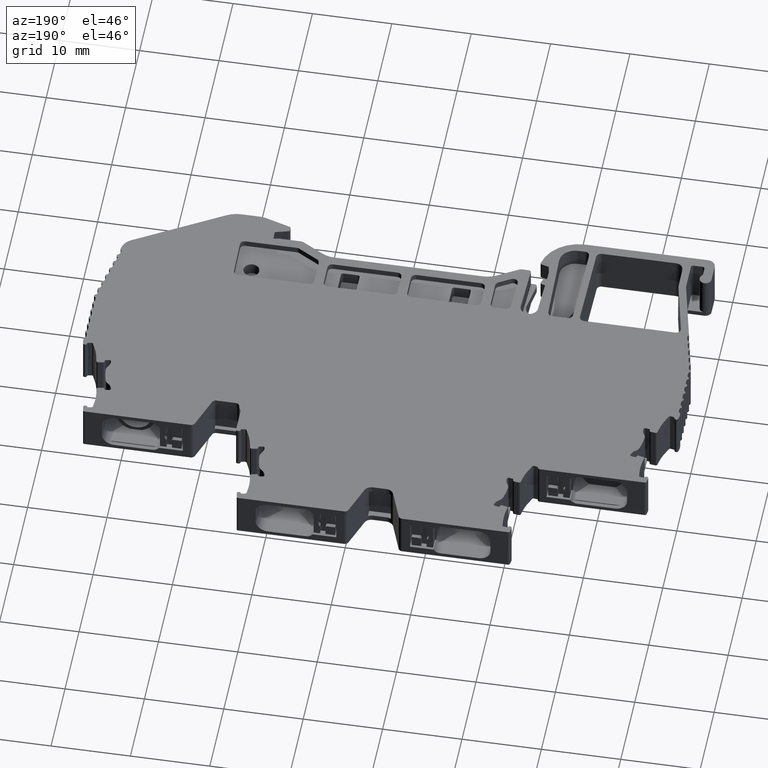
[diagram: clean part render]
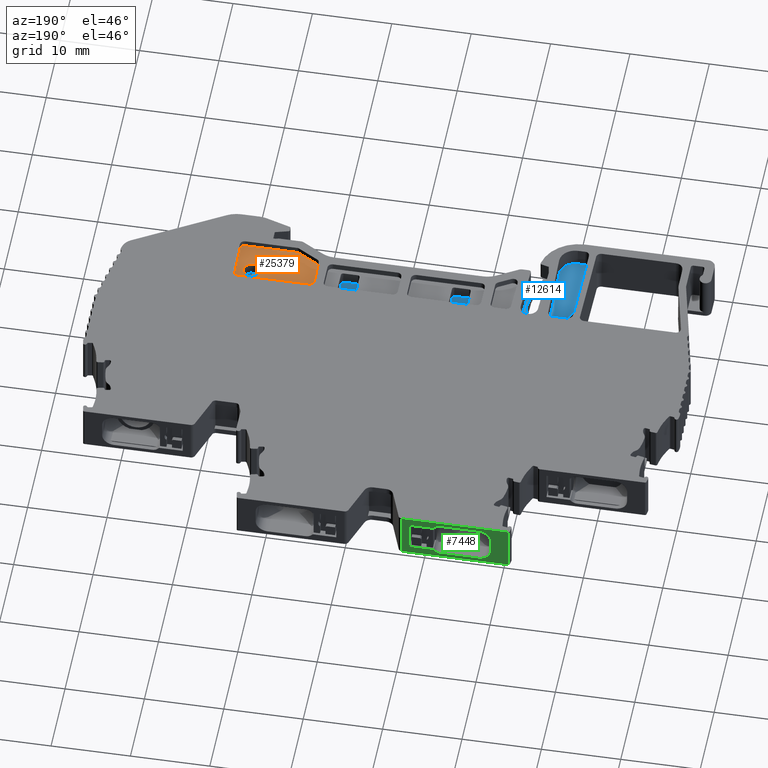
[diagram: same view with three faces highlighted in distinct colors, each labeled with its STEP entity id]
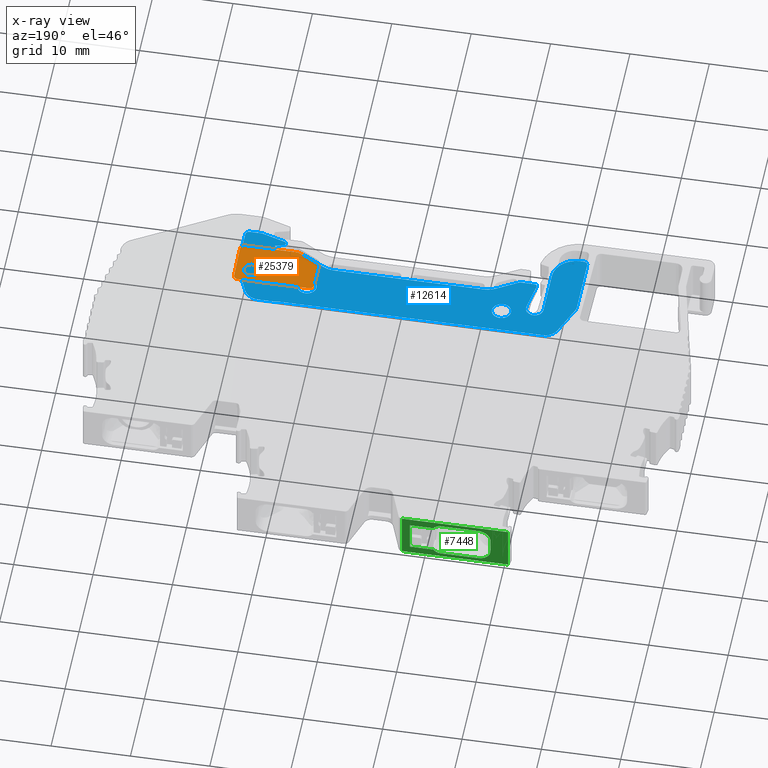
[diagram: x-ray of the same camera — body ghosted, the three highlighted faces saturated]
A machine part, auxiliary view with three faces highlighted in distinct colors.
The next image is the same camera in x-ray (body ghosted, the three faces saturated) — at least one of them is partly hidden behind the body in this view.
Their STEP definitions:

[orange] entity #25379 — the highlighted planar face has unit normal (0, 0, -1).
#13 = DIRECTION ( 'NONE',  ( -1.000000000000000000, 0.000000000000000000, 0.000000000000000000 ) ) ;
#65 = EDGE_CURVE ( 'NONE', #18562, #26511, #28390, .T. ) ;
#282 = EDGE_CURVE ( 'NONE', #22526, #18025, #29056, .T. ) ;
#1038 = PLANE ( 'NONE',  #27000 ) ;
#1328 = VERTEX_POINT ( 'NONE', #13498 ) ;
#1396 = ORIENTED_EDGE ( 'NONE', *, *, #8502, .F. ) ;
#2005 = CARTESIAN_POINT ( 'NONE',  ( 1943.553721869447145, 476.9486767584691620, 2.124999999999997335 ) ) ;
#2495 = VECTOR ( 'NONE', #17239, 1000.000000000000000 ) ;
#2822 = CIRCLE ( 'NONE', #4803, 0.9999999999998898659 ) ;
#3264 = CIRCLE ( 'NONE', #20596, 0.5860359480573951174 ) ;
#3298 = LINE ( 'NONE', #8405, #9348 ) ;
#3801 = DIRECTION ( 'NONE',  ( -0.000000000000000000, -0.000000000000000000, 1.000000000000000000 ) ) ;
#3806 = VECTOR ( 'NONE', #28680, 999.9999999999998863 ) ;
#3943 = EDGE_CURVE ( 'NONE', #1328, #18562, #28988, .T. ) ;
#4174 = CARTESIAN_POINT ( 'NONE',  ( 1948.692966163740039, 480.9598604050940480, 2.125000000000000000 ) ) ;
#4347 = CARTESIAN_POINT ( 'NONE',  ( 1943.395553184819846, 477.0138422423570432, 2.125000000000000000 ) ) ;
#4514 = CIRCLE ( 'NONE', #23830, 0.5860359480569510282 ) ;
#4803 = AXIS2_PLACEMENT_3D ( 'NONE', #9635, #16744, #26197 ) ;
#5305 = ORIENTED_EDGE ( 'NONE', *, *, #21721, .T. ) ;
#6006 = FACE_OUTER_BOUND ( 'NONE', #8948, .T. ) ;
#6138 = DIRECTION ( 'NONE',  ( -1.000000000000000000, 0.000000000000000000, 0.000000000000000000 ) ) ;
#6224 = DIRECTION ( 'NONE',  ( -1.000000000000000000, 0.000000000000000000, 0.000000000000000000 ) ) ;
#6385 = CARTESIAN_POINT ( 'NONE',  ( 1950.651415289569968, 482.2283759669219876, 2.125000000000000000 ) ) ;
#6444 = CARTESIAN_POINT ( 'NONE',  ( 1950.147218268769848, 476.9486767583030087, 2.125000000000000000 ) ) ;
#6586 = ORIENTED_EDGE ( 'NONE', *, *, #23460, .T. ) ;
#6708 = VECTOR ( 'NONE', #27258, 1000.000000000000000 ) ;
#7732 = AXIS2_PLACEMENT_3D ( 'NONE', #4174, #15640, #13618 ) ;
#8241 = DIRECTION ( 'NONE',  ( -0.000000000000000000, -0.000000000000000000, 1.000000000000000000 ) ) ;
#8325 = CIRCLE ( 'NONE', #29598, 0.5860359480576171620 ) ;
#8356 = LINE ( 'NONE', #17792, #6708 ) ;
#8405 = CARTESIAN_POINT ( 'NONE',  ( 1950.065468597629888, 482.8041841774270324, 2.125000000000000000 ) ) ;
#8502 = EDGE_CURVE ( 'NONE', #16421, #16910, #15148, .T. ) ;
#8574 = ORIENTED_EDGE ( 'NONE', *, *, #26404, .F. ) ;
#8790 = DIRECTION ( 'NONE',  ( 0.8660238551009388219, -0.5000026823889128780, 0.000000000000000000 ) ) ;
#8948 = EDGE_LOOP ( 'NONE', ( #11546, #30602, #6586, #12547, #19191, #18090, #5305, #14270, #11208, #23154, #11569 ) ) ;
#9348 = VECTOR ( 'NONE', #13, 1000.000000000000000 ) ;
#9591 = EDGE_CURVE ( 'NONE', #22662, #14632, #9983, .T. ) ;
#9635 = CARTESIAN_POINT ( 'NONE',  ( 1948.692966163740039, 480.9598604050940480, 2.125000000000000000 ) ) ;
#9983 = LINE ( 'NONE', #28875, #2495 ) ;
#10556 = CARTESIAN_POINT ( 'NONE',  ( 1950.065468597629888, 482.8041841774270324, 2.125000000000000000 ) ) ;
#10818 = CARTESIAN_POINT ( 'NONE',  ( 1950.065468597629888, 482.2181482293690351, 2.125000000000000000 ) ) ;
#10962 = CARTESIAN_POINT ( 'NONE',  ( 1950.147218268769848, 477.5347127063599828, 2.125000000000000000 ) ) ;
#11208 = ORIENTED_EDGE ( 'NONE', *, *, #3943, .T. ) ;
#11546 = ORIENTED_EDGE ( 'NONE', *, *, #25831, .T. ) ;
#11569 = ORIENTED_EDGE ( 'NONE', *, *, #20503, .T. ) ;
#11643 = AXIS2_PLACEMENT_3D ( 'NONE', #10962, #17766, #15750 ) ;
#12547 = ORIENTED_EDGE ( 'NONE', *, *, #20193, .T. ) ;
#13283 = EDGE_LOOP ( 'NONE', ( #1396, #8574 ) ) ;
#13498 = CARTESIAN_POINT ( 'NONE',  ( 1950.733164960715158, 477.5449404439119689, 2.125000000000000000 ) ) ;
#13618 = DIRECTION ( 'NONE',  ( 1.000000000000000000, 0.000000000000000000, 0.000000000000000000 ) ) ;
#13905 = CARTESIAN_POINT ( 'NONE',  ( 1940.567030350399818, 482.2181482293690351, 2.125000000000000000 ) ) ;
#14100 = CARTESIAN_POINT ( 'NONE',  ( 1943.469191804901811, 476.9713266613268843, 2.124999999999997335 ) ) ;
#14225 = CARTESIAN_POINT ( 'NONE',  ( 1949.692966163739811, 480.9598604050940480, 2.125000000000000000 ) ) ;
#14270 = ORIENTED_EDGE ( 'NONE', *, *, #15280, .T. ) ;
#14632 = VERTEX_POINT ( 'NONE', #16584 ) ;
#14745 = CARTESIAN_POINT ( 'NONE',  ( 1950.065468597629888, 482.2181482293690351, 2.125000000000000000 ) ) ;
#15148 = CIRCLE ( 'NONE', #7732, 0.9999999999998898659 ) ;
#15280 = EDGE_CURVE ( 'NONE', #27706, #1328, #26949, .T. ) ;
#15640 = DIRECTION ( 'NONE',  ( 0.000000000000000000, 0.000000000000000000, 1.000000000000000000 ) ) ;
#15750 = DIRECTION ( 'NONE',  ( -1.000000000000000000, -5.872833207152694126E-12, 0.000000000000000000 ) ) ;
#16175 = DIRECTION ( 'NONE',  ( -0.000000000000000000, -0.000000000000000000, 1.000000000000000000 ) ) ;
#16421 = VERTEX_POINT ( 'NONE', #14225 ) ;
#16584 = CARTESIAN_POINT ( 'NONE',  ( 1940.567030350399818, 478.9852491457630208, 2.125000000000000000 ) ) ;
#16744 = DIRECTION ( 'NONE',  ( 0.000000000000000000, 0.000000000000000000, 1.000000000000000000 ) ) ;
#16910 = VERTEX_POINT ( 'NONE', #19753 ) ;
#17239 = DIRECTION ( 'NONE',  ( 0.000000000000000000, -1.000000000000000000, 0.000000000000000000 ) ) ;
#17307 = EDGE_CURVE ( 'NONE', #18025, #28135, #8356, .T. ) ;
#17766 = DIRECTION ( 'NONE',  ( -0.000000000000000000, -0.000000000000000000, 1.000000000000000000 ) ) ;
#17767 = FACE_BOUND ( 'NONE', #13283, .T. ) ;
#17792 = CARTESIAN_POINT ( 'NONE',  ( 1943.638752575655190, 476.9486767583030087, 2.125000000000000000 ) ) ;
#18025 = VERTEX_POINT ( 'NONE', #29352 ) ;
#18090 = ORIENTED_EDGE ( 'NONE', *, *, #17307, .T. ) ;
#18480 = AXIS2_PLACEMENT_3D ( 'NONE', #14745, #24206, #22797 ) ;
#18503 = DIRECTION ( 'NONE',  ( -1.000000000000000000, 0.000000000000000000, 0.000000000000000000 ) ) ;
#18562 = VERTEX_POINT ( 'NONE', #6385 ) ;
#19191 = ORIENTED_EDGE ( 'NONE', *, *, #282, .T. ) ;
#19241 = CARTESIAN_POINT ( 'NONE',  ( 1950.733164960715158, 477.5449404439119689, 2.125000000000000000 ) ) ;
#19753 = CARTESIAN_POINT ( 'NONE',  ( 1947.692966163740039, 480.9598604050940480, 2.125000000000000000 ) ) ;
#20177 = CARTESIAN_POINT ( 'NONE',  ( 1941.153066298455087, 478.9852491457630208, 2.125000000000000000 ) ) ;
#20193 = EDGE_CURVE ( 'NONE', #27400, #22526, #20883, .T. ) ;
#20503 = EDGE_CURVE ( 'NONE', #26511, #28446, #3298, .T. ) ;
#20596 = AXIS2_PLACEMENT_3D ( 'NONE', #30276, #16175, #18503 ) ;
#20883 = LINE ( 'NONE', #30005, #25159 ) ;
#21089 = CARTESIAN_POINT ( 'NONE',  ( 1943.638752575655190, 476.9486767583030087, 2.125000000000000000 ) ) ;
#21090 = CARTESIAN_POINT ( 'NONE',  ( 1940.860046752450216, 478.4777280347989858, 2.125000000000000000 ) ) ;
#21721 = EDGE_CURVE ( 'NONE', #28135, #27706, #8325, .T. ) ;
#21992 = DIRECTION ( 'NONE',  ( 0.000000000000000000, 0.000000000000000000, -1.000000000000000000 ) ) ;
#22526 = VERTEX_POINT ( 'NONE', #29253 ) ;
#22662 = VERTEX_POINT ( 'NONE', #13905 ) ;
#22797 = DIRECTION ( 'NONE',  ( -1.000000000000000000, -9.472311624439829072E-14, 0.000000000000000000 ) ) ;
#23154 = ORIENTED_EDGE ( 'NONE', *, *, #65, .T. ) ;
#23460 = EDGE_CURVE ( 'NONE', #14632, #27400, #4514, .T. ) ;
#23830 = AXIS2_PLACEMENT_3D ( 'NONE', #20177, #8241, #6224 ) ;
#24206 = DIRECTION ( 'NONE',  ( -0.000000000000000000, -0.000000000000000000, 1.000000000000000000 ) ) ;
#24402 = CARTESIAN_POINT ( 'NONE',  ( 1941.153066298455087, 482.8041841774270324, 2.125000000000000000 ) ) ;
#25159 = VECTOR ( 'NONE', #8790, 1000.000000000000000 ) ;
#25186 = CARTESIAN_POINT ( 'NONE',  ( 1950.147218268769848, 477.5347127063599828, 2.125000000000000000 ) ) ;
#25379 = ADVANCED_FACE ( 'NONE', ( #17767, #6006 ), #1038, .F. ) ;
#25831 = EDGE_CURVE ( 'NONE', #28446, #22662, #3264, .T. ) ;
#26197 = DIRECTION ( 'NONE',  ( 1.000000000000000000, 0.000000000000000000, 0.000000000000000000 ) ) ;
#26404 = EDGE_CURVE ( 'NONE', #16910, #16421, #2822, .T. ) ;
#26511 = VERTEX_POINT ( 'NONE', #10556 ) ;
#26949 = CIRCLE ( 'NONE', #11643, 0.5860359480576171620 ) ;
#27000 = AXIS2_PLACEMENT_3D ( 'NONE', #10818, #21992, #27380 ) ;
#27258 = DIRECTION ( 'NONE',  ( 1.000000000000000000, -1.705813746240605376E-14, 0.000000000000000000 ) ) ;
#27380 = DIRECTION ( 'NONE',  ( -1.000000000000000000, 0.000000000000000000, 0.000000000000000000 ) ) ;
#27400 = VERTEX_POINT ( 'NONE', #21090 ) ;
#27706 = VERTEX_POINT ( 'NONE', #30017 ) ;
#28135 = VERTEX_POINT ( 'NONE', #6444 ) ;
#28390 = CIRCLE ( 'NONE', #18480, 0.5860359480576171620 ) ;
#28446 = VERTEX_POINT ( 'NONE', #24402 ) ;
#28680 = DIRECTION ( 'NONE',  ( -0.01745240643745230719, 0.9998476951563883830, 0.000000000000000000 ) ) ;
#28875 = CARTESIAN_POINT ( 'NONE',  ( 1940.567030350399818, 482.2181482293690351, 2.125000000000000000 ) ) ;
#28988 = LINE ( 'NONE', #19241, #3806 ) ;
#29056 = B_SPLINE_CURVE_WITH_KNOTS ( 'NONE', 3,
 ( #4347, #14100, #2005, #21089 ),
 .UNSPECIFIED., .F., .F.,
 ( 4, 4 ),
 ( 4.742874840267547117E-16, 0.0002548524267453149399 ),
 .UNSPECIFIED. ) ;
#29253 = CARTESIAN_POINT ( 'NONE',  ( 1943.395553184819846, 477.0138422423570432, 2.125000000000000000 ) ) ;
#29352 = CARTESIAN_POINT ( 'NONE',  ( 1943.638752575655190, 476.9486767583030087, 2.125000000000000000 ) ) ;
#29598 = AXIS2_PLACEMENT_3D ( 'NONE', #25186, #3801, #6138 ) ;
#30005 = CARTESIAN_POINT ( 'NONE',  ( 1940.860046752450216, 478.4777280348000090, 2.125000000000000000 ) ) ;
#30017 = CARTESIAN_POINT ( 'NONE',  ( 1950.733254216827390, 477.5347127063599828, 2.125000000000000000 ) ) ;
#30276 = CARTESIAN_POINT ( 'NONE',  ( 1941.153066298455087, 482.2181482293690351, 2.125000000000000000 ) ) ;
#30602 = ORIENTED_EDGE ( 'NONE', *, *, #9591, .T. ) ;

[blue] entity #12614 — the highlighted planar face has unit normal (-0, 0, -1).
#22 = VECTOR ( 'NONE', #20402, 1000.000000000000114 ) ;
#43 = VERTEX_POINT ( 'NONE', #12276 ) ;
#155 = CARTESIAN_POINT ( 'NONE',  ( 1941.692966163739811, 480.9598604050940480, 0.4750000000150049750 ) ) ;
#269 = CIRCLE ( 'NONE', #20082, 0.9999999999996678213 ) ;
#374 = FACE_BOUND ( 'NONE', #13563, .T. ) ;
#394 = CARTESIAN_POINT ( 'NONE',  ( 1917.192966163739811, 482.1598604050941503, 0.4750000000217930451 ) ) ;
#527 = CARTESIAN_POINT ( 'NONE',  ( 1948.848794024970175, 472.9233260166219566, 0.4749999999999999778 ) ) ;
#561 = EDGE_CURVE ( 'NONE', #17716, #19207, #11409, .T. ) ;
#594 = EDGE_CURVE ( 'NONE', #20830, #9858, #13441, .T. ) ;
#679 = ORIENTED_EDGE ( 'NONE', *, *, #12469, .F. ) ;
#765 = CARTESIAN_POINT ( 'NONE',  ( 1945.798630798404929, 474.1076573810410082, 0.4750000000035700110 ) ) ;
#848 = DIRECTION ( 'NONE',  ( -0.8660238551023851095, -0.5000026823864079928, -1.480741984239946048E-12 ) ) ;
#907 = DIRECTION ( 'NONE',  ( -1.776356821935509986E-15, 5.619248332499660241E-12, -1.000000000000000000 ) ) ;
#994 = LINE ( 'NONE', #10472, #10033 ) ;
#1351 = CIRCLE ( 'NONE', #25608, 0.2999999999999114486 ) ;
#1358 = DIRECTION ( 'NONE',  ( -1.776356830050185078E-15, 2.961114267037269966E-12, -1.000000000000000000 ) ) ;
#1379 = DIRECTION ( 'NONE',  ( 0.000000000000000000, 1.000000000000000000, 5.619239159630387384E-12 ) ) ;
#1470 = CIRCLE ( 'NONE', #28687, 1.099999999999767830 ) ;
#1569 = LINE ( 'NONE', #8254, #29560 ) ;
#1618 = VERTEX_POINT ( 'NONE', #27262 ) ;
#1744 = VERTEX_POINT ( 'NONE', #30035 ) ;
#1771 = EDGE_CURVE ( 'NONE', #14589, #30428, #12490, .T. ) ;
#1773 = VECTOR ( 'NONE', #23477, 1000.000000000000114 ) ;
#1887 = CARTESIAN_POINT ( 'NONE',  ( 1943.217251896170183, 475.6847127063820153, 0.4750000000082399976 ) ) ;
#1931 = EDGE_CURVE ( 'NONE', #25616, #14056, #2605, .T. ) ;
#1993 = EDGE_CURVE ( 'NONE', #8220, #15956, #994, .T. ) ;
#2252 = FACE_OUTER_BOUND ( 'NONE', #25491, .T. ) ;
#2484 = DIRECTION ( 'NONE',  ( -1.776356830050185078E-15, 2.961114267037269966E-12, -1.000000000000000000 ) ) ;
#2551 = LINE ( 'NONE', #25956, #16882 ) ;
#2564 = ORIENTED_EDGE ( 'NONE', *, *, #1993, .F. ) ;
#2587 = ORIENTED_EDGE ( 'NONE', *, *, #21925, .F. ) ;
#2605 = CIRCLE ( 'NONE', #22903, 1.199999999999978861 ) ;
#2702 = ORIENTED_EDGE ( 'NONE', *, *, #2731, .T. ) ;
#2731 = EDGE_CURVE ( 'NONE', #1744, #10839, #29144, .T. ) ;
#2789 = CARTESIAN_POINT ( 'NONE',  ( 1944.935921286549728, 505.8095947062454343, 0.4750000001546433870 ) ) ;
#2986 = ORIENTED_EDGE ( 'NONE', *, *, #21260, .F. ) ;
#3014 = LINE ( 'NONE', #527, #21132 ) ;
#3166 = VECTOR ( 'NONE', #11097, 1000.000000000000000 ) ;
#3253 = CARTESIAN_POINT ( 'NONE',  ( 1941.692966163739811, 480.9598604050940480, 0.4750000000150049750 ) ) ;
#3577 = CARTESIAN_POINT ( 'NONE',  ( 1938.841889403515097, 474.6693883772550180, 0.4750000000051500249 ) ) ;
#3586 = DIRECTION ( 'NONE',  ( -3.108624468950090558E-12, -1.000000000000000000, -2.961064553274829964E-12 ) ) ;
#3625 = CARTESIAN_POINT ( 'NONE',  ( 1945.548630798404929, 474.2094623273100638, 0.4750000000037949976 ) ) ;
#3653 = ORIENTED_EDGE ( 'NONE', *, *, #22206, .F. ) ;
#3663 = CARTESIAN_POINT ( 'NONE',  ( 1938.841889403525101, 477.6693883772559843, 0.4750000000140300327 ) ) ;
#3781 = EDGE_CURVE ( 'NONE', #24750, #13759, #29666, .T. ) ;
#3954 = ORIENTED_EDGE ( 'NONE', *, *, #24315, .F. ) ;
#4039 = AXIS2_PLACEMENT_3D ( 'NONE', #27834, #6614, #20868 ) ;
#4251 = ORIENTED_EDGE ( 'NONE', *, *, #23796, .F. ) ;
#4448 = VECTOR ( 'NONE', #15686, 1000.000000000000114 ) ;
#4583 = EDGE_CURVE ( 'NONE', #15473, #26910, #1351, .T. ) ;
#4733 = AXIS2_PLACEMENT_3D ( 'NONE', #13187, #22660, #3586 ) ;
#4855 = DIRECTION ( 'NONE',  ( -1.776356830050185078E-15, 2.961114267037269966E-12, -1.000000000000000000 ) ) ;
#4965 = CARTESIAN_POINT ( 'NONE',  ( 1949.792969024739932, 478.7750973310379550, 0.4750000000173250081 ) ) ;
#5039 = EDGE_CURVE ( 'NONE', #22858, #20830, #20662, .T. ) ;
#5099 = ORIENTED_EDGE ( 'NONE', *, *, #29633, .F. ) ;
#5179 = AXIS2_PLACEMENT_3D ( 'NONE', #765, #5285, #19833 ) ;
#5180 = CIRCLE ( 'NONE', #19517, 1.000000000000111910 ) ;
#5285 = DIRECTION ( 'NONE',  ( -1.776356830050185078E-15, 2.961114267037269966E-12, -1.000000000000000000 ) ) ;
#5382 = VERTEX_POINT ( 'NONE', #14366 ) ;
#5396 = CARTESIAN_POINT ( 'NONE',  ( 1909.092969024740114, 478.7751111454130069, 0.4750000000172450165 ) ) ;
#5607 = EDGE_CURVE ( 'NONE', #26910, #12970, #23497, .T. ) ;
#5738 = VERTEX_POINT ( 'NONE', #17101 ) ;
#5799 = ORIENTED_EDGE ( 'NONE', *, *, #20867, .F. ) ;
#5835 = CARTESIAN_POINT ( 'NONE',  ( 1945.691340746700007, 475.6847127063740004, 0.4750000000082350016 ) ) ;
#5845 = DIRECTION ( 'NONE',  ( -3.108624468950090558E-12, -1.000000000000000000, -2.961118763383454240E-12 ) ) ;
#5930 = ORIENTED_EDGE ( 'NONE', *, *, #8227, .F. ) ;
#5933 = ORIENTED_EDGE ( 'NONE', *, *, #23672, .T. ) ;
#6037 = CARTESIAN_POINT ( 'NONE',  ( 1912.092966163699884, 473.8847255810809997, 0.4750000000028000158 ) ) ;
#6057 = DIRECTION ( 'NONE',  ( -3.034609600640800324E-12, -1.000000000000000000, -2.961118763382522450E-12 ) ) ;
#6073 = CARTESIAN_POINT ( 'NONE',  ( 1913.633215408229944, 476.0368071597729909, 0.4750000000090149888 ) ) ;
#6188 = ORIENTED_EDGE ( 'NONE', *, *, #14668, .F. ) ;
#6451 = LINE ( 'NONE', #16048, #18005 ) ;
#6536 = CARTESIAN_POINT ( 'NONE',  ( 1912.092966163699884, 473.8847255810809997, 0.4750000000028000158 ) ) ;
#6614 = DIRECTION ( 'NONE',  ( -1.776356830050185078E-15, 2.961114267037269966E-12, -1.000000000000000000 ) ) ;
#6768 = CARTESIAN_POINT ( 'NONE',  ( 1913.928657734134958, 475.6847127064719984, 0.4750000000081250340 ) ) ;
#6880 = ORIENTED_EDGE ( 'NONE', *, *, #9704, .F. ) ;
#6900 = DIRECTION ( 'NONE',  ( -3.108624468950866848E-12, -1.000000000000000000, -2.961118763384193775E-12 ) ) ;
#6904 = EDGE_CURVE ( 'NONE', #9858, #13490, #30134, .T. ) ;
#7067 = EDGE_CURVE ( 'NONE', #20065, #14137, #3014, .T. ) ;
#7208 = DIRECTION ( 'NONE',  ( -1.776356830050185078E-15, 2.961114267037269966E-12, -1.000000000000000000 ) ) ;
#7297 = CARTESIAN_POINT ( 'NONE',  ( 1947.271087312830105, 482.2503324329130123, 0.4750000000273250089 ) ) ;
#7304 = AXIS2_PLACEMENT_3D ( 'NONE', #9037, #28092, #30557 ) ;
#7443 = ORIENTED_EDGE ( 'NONE', *, *, #27639, .T. ) ;
#7451 = CARTESIAN_POINT ( 'NONE',  ( 1918.544040598769925, 477.2674599426200075, 0.4750000000129949718 ) ) ;
#7510 = CARTESIAN_POINT ( 'NONE',  ( 1911.614845014619959, 482.2503324330230043, 0.4750000000274500200 ) ) ;
#7566 = VERTEX_POINT ( 'NONE', #6073 ) ;
#7586 = VECTOR ( 'NONE', #848, 999.9999999999998863 ) ;
#7669 = EDGE_CURVE ( 'NONE', #43, #5382, #1470, .T. ) ;
#7736 = EDGE_CURVE ( 'NONE', #12129, #8220, #21256, .T. ) ;
#7876 = CARTESIAN_POINT ( 'NONE',  ( 1908.512448016934968, 470.8171671095009856, 0.4749999999937100092 ) ) ;
#7918 = DIRECTION ( 'NONE',  ( 1.776356830050185078E-15, -2.961114267037269966E-12, 1.000000000000000000 ) ) ;
#8035 = DIRECTION ( 'NONE',  ( 3.713265354292279509E-12, 1.000000000000000000, 2.967515460675544983E-12 ) ) ;
#8220 = VERTEX_POINT ( 'NONE', #23014 ) ;
#8227 = EDGE_CURVE ( 'NONE', #17774, #12856, #20993, .T. ) ;
#8254 = CARTESIAN_POINT ( 'NONE',  ( 1945.724568208800065, 473.8688798008089975, 0.4750000000026850522 ) ) ;
#8277 = DIRECTION ( 'NONE',  ( -1.776356830050185078E-15, 2.961114267037269966E-12, -1.000000000000000000 ) ) ;
#8337 = LINE ( 'NONE', #17469, #28612 ) ;
#8377 = AXIS2_PLACEMENT_3D ( 'NONE', #22744, #25058, #10956 ) ;
#8409 = CARTESIAN_POINT ( 'NONE',  ( 1914.276257553055075, 479.6836803848889872, 0.4750000000198900119 ) ) ;
#8475 = AXIS2_PLACEMENT_3D ( 'NONE', #28248, #4855, #21136 ) ;
#8759 = VERTEX_POINT ( 'NONE', #7876 ) ;
#8922 = ORIENTED_EDGE ( 'NONE', *, *, #594, .F. ) ;
#9037 = CARTESIAN_POINT ( 'NONE',  ( 1920.044048645929934, 474.6693883773120319, 0.4750000000052150284 ) ) ;
#9089 = CIRCLE ( 'NONE', #19492, 3.083962780616844590 ) ;
#9211 = CARTESIAN_POINT ( 'NONE',  ( 1909.009095599049942, 473.8608766244519757, 0.4750000000025900171 ) ) ;
#9416 = EDGE_CURVE ( 'NONE', #13213, #20065, #17830, .T. ) ;
#9704 = EDGE_CURVE ( 'NONE', #14636, #21686, #1569, .T. ) ;
#9777 = DIRECTION ( 'NONE',  ( 0.000000000000000000, 1.000000000000000000, 5.619239159630387384E-12 ) ) ;
#9813 = CARTESIAN_POINT ( 'NONE',  ( 1945.841335990649895, 475.7249023393900416, 0.4750000000082350016 ) ) ;
#9858 = VERTEX_POINT ( 'NONE', #13976 ) ;
#9937 = CIRCLE ( 'NONE', #27236, 0.5000000000000559552 ) ;
#10001 = DIRECTION ( 'NONE',  ( -1.000000000000000000, 2.906425021968365003E-12, 3.491481338098295227E-15 ) ) ;
#10033 = VECTOR ( 'NONE', #29510, 1000.000000000000000 ) ;
#10063 = CARTESIAN_POINT ( 'NONE',  ( 1950.292969024719923, 472.9233260166179775, 0.4749999999999999778 ) ) ;
#10472 = CARTESIAN_POINT ( 'NONE',  ( 1947.271087312835107, 484.2503324329130123, 0.4750000000333200467 ) ) ;
#10628 = CARTESIAN_POINT ( 'NONE',  ( 1917.192966163739811, 480.9598604050940480, 0.4750000000150499946 ) ) ;
#10812 = CARTESIAN_POINT ( 'NONE',  ( 1915.668686153285080, 475.6847127064660299, 0.4750000000081200380 ) ) ;
#10839 = VERTEX_POINT ( 'NONE', #24093 ) ;
#10905 = ORIENTED_EDGE ( 'NONE', *, *, #1771, .F. ) ;
#10941 = CARTESIAN_POINT ( 'NONE',  ( 1946.492969024729973, 475.7547004417580183, 0.4750000000084549923 ) ) ;
#10956 = DIRECTION ( 'NONE',  ( -2.960594732336267994E-12, -1.000000000000000000, -2.961136833422511150E-12 ) ) ;
#11097 = DIRECTION ( 'NONE',  ( -0.8660345566149691976, -0.4999841464973801552, -1.480686941338548267E-12 ) ) ;
#11104 = VERTEX_POINT ( 'NONE', #30084 ) ;
#11252 = DIRECTION ( 'NONE',  ( -0.8660238550993066831, 0.5000026823917397278, 1.486789396497695300E-12 ) ) ;
#11401 = CARTESIAN_POINT ( 'NONE',  ( 1946.792969024725153, 474.7347255809740432, 0.4750000000053449800 ) ) ;
#11409 = LINE ( 'NONE', #6768, #20893 ) ;
#11863 = DIRECTION ( 'NONE',  ( -1.776356821935509986E-15, 5.619248332499656202E-12, -1.000000000000000000 ) ) ;
#12101 = VECTOR ( 'NONE', #27464, 1000.000000000000000 ) ;
#12129 = VERTEX_POINT ( 'NONE', #23537 ) ;
#12276 = CARTESIAN_POINT ( 'NONE',  ( 1914.276257553055075, 479.6836803848889872, 0.4750000000198900119 ) ) ;
#12318 = AXIS2_PLACEMENT_3D ( 'NONE', #3253, #20148, #1379 ) ;
#12469 = EDGE_CURVE ( 'NONE', #19207, #7566, #14449, .T. ) ;
#12490 = LINE ( 'NONE', #14388, #7586 ) ;
#12614 = ADVANCED_FACE ( 'NONE', ( #2252, #16795, #374 ), #26256, .F. ) ;
#12781 = CARTESIAN_POINT ( 'NONE',  ( 1909.009095599049942, 473.8608766244519757, 0.4750000000025900171 ) ) ;
#12801 = AXIS2_PLACEMENT_3D ( 'NONE', #17389, #28454, #25982 ) ;
#12856 = VERTEX_POINT ( 'NONE', #25161 ) ;
#12889 = AXIS2_PLACEMENT_3D ( 'NONE', #27242, #907, #25849 ) ;
#12947 = CARTESIAN_POINT ( 'NONE',  ( 1946.342973780780085, 476.0145108087420454, 0.4750000000091199603 ) ) ;
#12970 = VERTEX_POINT ( 'NONE', #9813 ) ;
#13021 = EDGE_CURVE ( 'NONE', #8759, #20958, #26785, .T. ) ;
#13106 = CARTESIAN_POINT ( 'NONE',  ( 1945.724568208800065, 473.8688798008089975, 0.4750000000026850522 ) ) ;
#13142 = CARTESIAN_POINT ( 'NONE',  ( 1915.668686153285080, 476.1847127064660299, 0.4750000000094500296 ) ) ;
#13174 = CARTESIAN_POINT ( 'NONE',  ( 1943.217251896170183, 475.6847127063820153, 0.4750000000082399976 ) ) ;
#13187 = CARTESIAN_POINT ( 'NONE',  ( 1948.848794024970175, 473.4233260166219566, 0.4750000000015600077 ) ) ;
#13213 = VERTEX_POINT ( 'NONE', #25127 ) ;
#13369 = ORIENTED_EDGE ( 'NONE', *, *, #23742, .F. ) ;
#13385 = DIRECTION ( 'NONE',  ( 0.000000000000000000, 1.000000000000000000, 5.619239159630387384E-12 ) ) ;
#13439 = CIRCLE ( 'NONE', #28796, 1.199999999999978861 ) ;
#13441 = CIRCLE ( 'NONE', #4039, 0.5000000000000559552 ) ;
#13490 = VERTEX_POINT ( 'NONE', #22017 ) ;
#13514 = ORIENTED_EDGE ( 'NONE', *, *, #16605, .F. ) ;
#13530 = LINE ( 'NONE', #23002, #18553 ) ;
#13563 = EDGE_LOOP ( 'NONE', ( #27405, #7443 ) ) ;
#13612 = CARTESIAN_POINT ( 'NONE',  ( 1950.792969024735157, 478.7750973310349423, 0.4750000000173200121 ) ) ;
#13625 = CARTESIAN_POINT ( 'NONE',  ( 1908.092969024714876, 471.3106408851829769, 0.4749999999952650431 ) ) ;
#13759 = VERTEX_POINT ( 'NONE', #19144 ) ;
#13819 = EDGE_CURVE ( 'NONE', #14473, #27248, #9089, .T. ) ;
#13932 = VECTOR ( 'NONE', #15327, 1000.000000000000114 ) ;
#13976 = CARTESIAN_POINT ( 'NONE',  ( 1942.967250554974953, 475.7517007788320029, 0.4750000000084650398 ) ) ;
#13984 = ORIENTED_EDGE ( 'NONE', *, *, #13021, .F. ) ;
#14005 = CARTESIAN_POINT ( 'NONE',  ( 1948.848794024970175, 472.9233260166219566, 0.4749999999999999778 ) ) ;
#14056 = VERTEX_POINT ( 'NONE', #27792 ) ;
#14137 = VERTEX_POINT ( 'NONE', #14005 ) ;
#14366 = CARTESIAN_POINT ( 'NONE',  ( 1912.092969024739887, 479.8746933803290062, 0.4750000000205649719 ) ) ;
#14388 = CARTESIAN_POINT ( 'NONE',  ( 1915.918687494480082, 475.7517007789149943, 0.4750000000083400287 ) ) ;
#14449 = CIRCLE ( 'NONE', #26333, 0.3000000000000779821 ) ;
#14473 = VERTEX_POINT ( 'NONE', #6536 ) ;
#14566 = DIRECTION ( 'NONE',  ( -3.027880976251065820E-12, -1.000000000000000000, -2.961103978809330952E-12 ) ) ;
#14589 = VERTEX_POINT ( 'NONE', #7451 ) ;
#14636 = VERTEX_POINT ( 'NONE', #26043 ) ;
#14668 = EDGE_CURVE ( 'NONE', #21686, #5738, #19017, .T. ) ;
#14780 = AXIS2_PLACEMENT_3D ( 'NONE', #3577, #7918, #6057 ) ;
#14839 = CIRCLE ( 'NONE', #17306, 1.999999999999724221 ) ;
#14849 = LINE ( 'NONE', #26931, #23734 ) ;
#14948 = ORIENTED_EDGE ( 'NONE', *, *, #28091, .F. ) ;
#15019 = ORIENTED_EDGE ( 'NONE', *, *, #6904, .F. ) ;
#15088 = DIRECTION ( 'NONE',  ( 5.241255640397440142E-12, 1.000000000000000000, 2.967515460675540136E-12 ) ) ;
#15327 = DIRECTION ( 'NONE',  ( -4.776389567471609391E-07, -0.9999999999998858691, -2.967515459007549818E-12 ) ) ;
#15396 = LINE ( 'NONE', #3625, #26844 ) ;
#15473 = VERTEX_POINT ( 'NONE', #19155 ) ;
#15487 = CARTESIAN_POINT ( 'NONE',  ( 1946.792969024725153, 474.7347255809740432, 0.4750000000053449800 ) ) ;
#15508 = CARTESIAN_POINT ( 'NONE',  ( 1909.009095599040393, 470.7769138438351320, 0.4749999999934580441 ) ) ;
#15656 = ORIENTED_EDGE ( 'NONE', *, *, #16586, .F. ) ;
#15679 = DIRECTION ( 'NONE',  ( -0.9551103209262932214, 0.2962503584134090207, 8.824622686755682398E-13 ) ) ;
#15686 = DIRECTION ( 'NONE',  ( 0.1736481776697454682, 0.9848077530117116396, 2.921825943485178775E-12 ) ) ;
#15710 = EDGE_CURVE ( 'NONE', #14137, #14636, #26004, .T. ) ;
#15841 = CIRCLE ( 'NONE', #12889, 1.199999999999978861 ) ;
#15893 = DIRECTION ( 'NONE',  ( -1.000000000000000000, 3.012927930994425004E-12, -8.320758577248530668E-15 ) ) ;
#15951 = EDGE_CURVE ( 'NONE', #12856, #23954, #269, .T. ) ;
#15956 = VERTEX_POINT ( 'NONE', #21711 ) ;
#16048 = CARTESIAN_POINT ( 'NONE',  ( 1920.044048645939938, 477.6693883773119751, 0.4750000000138750456 ) ) ;
#16191 = VECTOR ( 'NONE', #20388, 1000.000000000000114 ) ;
#16294 = CARTESIAN_POINT ( 'NONE',  ( 1909.767085949599959, 483.0156992977589994, 0.4750000000299000047 ) ) ;
#16575 = DIRECTION ( 'NONE',  ( -3.108624468951471077E-12, -1.000000000000000000, -2.961118763384768924E-12 ) ) ;
#16586 = EDGE_CURVE ( 'NONE', #1618, #24750, #5180, .T. ) ;
#16605 = EDGE_CURVE ( 'NONE', #29179, #11104, #6451, .T. ) ;
#16689 = CIRCLE ( 'NONE', #7304, 2.999999999999891642 ) ;
#16795 = FACE_BOUND ( 'NONE', #22044, .T. ) ;
#16882 = VECTOR ( 'NONE', #26567, 1000.000000000000000 ) ;
#17098 = EDGE_CURVE ( 'NONE', #23954, #13213, #13530, .T. ) ;
#17101 = CARTESIAN_POINT ( 'NONE',  ( 1945.548630798404929, 474.1076573810410082, 0.4750000000035700110 ) ) ;
#17188 = ORIENTED_EDGE ( 'NONE', *, *, #3781, .F. ) ;
#17296 = ORIENTED_EDGE ( 'NONE', *, *, #4583, .F. ) ;
#17306 = AXIS2_PLACEMENT_3D ( 'NONE', #7510, #26246, #6900 ) ;
#17389 = CARTESIAN_POINT ( 'NONE',  ( 1945.798630798404929, 474.2094623273090406, 0.4750000000037949976 ) ) ;
#17469 = CARTESIAN_POINT ( 'NONE',  ( 1896.978752798377400, 484.1626022916889838, 0.4750000000330878436 ) ) ;
#17480 = DIRECTION ( 'NONE',  ( -3.108624468950090558E-12, -1.000000000000000000, -2.961064553274829964E-12 ) ) ;
#17561 = VERTEX_POINT ( 'NONE', #21529 ) ;
#17716 = VERTEX_POINT ( 'NONE', #10812 ) ;
#17769 = CIRCLE ( 'NONE', #8377, 0.2999999999997449152 ) ;
#17774 = VERTEX_POINT ( 'NONE', #20715 ) ;
#17830 = CIRCLE ( 'NONE', #27239, 0.5000000000001114664 ) ;
#17876 = CARTESIAN_POINT ( 'NONE',  ( 1908.169089492224884, 479.1577945777810328, 0.4750000000183600135 ) ) ;
#17915 = CARTESIAN_POINT ( 'NONE',  ( 1915.918687494480082, 475.7517007789149943, 0.4750000000083400287 ) ) ;
#18005 = VECTOR ( 'NONE', #15893, 1000.000000000000000 ) ;
#18056 = CARTESIAN_POINT ( 'NONE',  ( 1913.928657734134958, 475.9847127064719530, 0.4750000000090099928 ) ) ;
#18127 = ORIENTED_EDGE ( 'NONE', *, *, #9416, .F. ) ;
#18371 = DIRECTION ( 'NONE',  ( -1.000000000000000000, 3.123981769497315067E-12, 3.491481338743900175E-15 ) ) ;
#18402 = EDGE_CURVE ( 'NONE', #27248, #8759, #25538, .T. ) ;
#18459 = ORIENTED_EDGE ( 'NONE', *, *, #20239, .F. ) ;
#18505 = DIRECTION ( 'NONE',  ( -3.108624468949745226E-12, -1.000000000000000000, -2.961064553274501192E-12 ) ) ;
#18553 = VECTOR ( 'NONE', #27791, 1000.000000000000000 ) ;
#18651 = DIRECTION ( 'NONE',  ( -1.776356830050185078E-15, 2.961114267037269966E-12, -1.000000000000000000 ) ) ;
#19017 = CIRCLE ( 'NONE', #5179, 0.2500000000003055334 ) ;
#19144 = CARTESIAN_POINT ( 'NONE',  ( 1909.767085949599959, 483.0156992977589994, 0.4750000000299000047 ) ) ;
#19155 = CARTESIAN_POINT ( 'NONE',  ( 1946.792969024730155, 475.7547004417569951, 0.4750000000084549923 ) ) ;
#19157 = CARTESIAN_POINT ( 'NONE',  ( 1913.928657734134958, 475.6847127064719984, 0.4750000000081250340 ) ) ;
#19207 = VERTEX_POINT ( 'NONE', #19157 ) ;
#19287 = ORIENTED_EDGE ( 'NONE', *, *, #13819, .F. ) ;
#19379 = ORIENTED_EDGE ( 'NONE', *, *, #15951, .F. ) ;
#19492 = AXIS2_PLACEMENT_3D ( 'NONE', #12781, #8277, #22403 ) ;
#19517 = AXIS2_PLACEMENT_3D ( 'NONE', #5396, #26619, #5845 ) ;
#19585 = ORIENTED_EDGE ( 'NONE', *, *, #7067, .F. ) ;
#19833 = DIRECTION ( 'NONE',  ( -2.664535259097119481E-12, -1.000000000000000000, -2.961172973488790795E-12 ) ) ;
#20065 = VERTEX_POINT ( 'NONE', #10063 ) ;
#20082 = AXIS2_PLACEMENT_3D ( 'NONE', #4965, #28355, #16575 ) ;
#20099 = ORIENTED_EDGE ( 'NONE', *, *, #21226, .F. ) ;
#20102 = AXIS2_PLACEMENT_3D ( 'NONE', #9211, #18651, #28114 ) ;
#20148 = DIRECTION ( 'NONE',  ( -1.776356821935509986E-15, 5.619248332499660241E-12, -1.000000000000000000 ) ) ;
#20222 = ORIENTED_EDGE ( 'NONE', *, *, #18402, .F. ) ;
#20239 = EDGE_CURVE ( 'NONE', #22867, #17561, #26150, .T. ) ;
#20388 = DIRECTION ( 'NONE',  ( 0.3826834323680105010, 0.9238795325100768174, 2.740290664466149557E-12 ) ) ;
#20402 = DIRECTION ( 'NONE',  ( 0.9659230709110930846, 0.2588293280941775798, 7.647075304279440991E-13 ) ) ;
#20662 = LINE ( 'NONE', #1887, #12101 ) ;
#20715 = CARTESIAN_POINT ( 'NONE',  ( 1949.118846377849877, 483.0156992976370702, 0.4750000000297600056 ) ) ;
#20830 = VERTEX_POINT ( 'NONE', #13174 ) ;
#20867 = EDGE_CURVE ( 'NONE', #13490, #29179, #28152, .T. ) ;
#20868 = DIRECTION ( 'NONE',  ( -3.108624468950090558E-12, -1.000000000000000000, -2.961064553274829964E-12 ) ) ;
#20893 = VECTOR ( 'NONE', #18371, 1000.000000000000000 ) ;
#20958 = VERTEX_POINT ( 'NONE', #13625 ) ;
#20993 = LINE ( 'NONE', #30270, #1773 ) ;
#21012 = DIRECTION ( 'NONE',  ( 1.776356830050185078E-15, -2.961114267037269966E-12, 1.000000000000000000 ) ) ;
#21132 = VECTOR ( 'NONE', #10001, 1000.000000000000000 ) ;
#21136 = DIRECTION ( 'NONE',  ( -3.108624469016009744E-12, -1.000000000000000000, -2.961064553337619758E-12 ) ) ;
#21173 = DIRECTION ( 'NONE',  ( -2.960594732332981082E-12, -1.000000000000000000, -2.961136833419223834E-12 ) ) ;
#21226 = EDGE_CURVE ( 'NONE', #24981, #15473, #14849, .T. ) ;
#21256 = LINE ( 'NONE', #2789, #29677 ) ;
#21260 = EDGE_CURVE ( 'NONE', #24544, #12129, #8337, .T. ) ;
#21529 = CARTESIAN_POINT ( 'NONE',  ( 1945.733923466380020, 474.4509430950370188, 0.4750000000044599657 ) ) ;
#21686 = VERTEX_POINT ( 'NONE', #13106 ) ;
#21711 = CARTESIAN_POINT ( 'NONE',  ( 1947.271087312835107, 484.2503324329130123, 0.4750000000333200467 ) ) ;
#21925 = EDGE_CURVE ( 'NONE', #13759, #24544, #14839, .T. ) ;
#21972 = CARTESIAN_POINT ( 'NONE',  ( 1945.548630798404929, 474.2094623273100638, 0.4750000000037949976 ) ) ;
#22017 = CARTESIAN_POINT ( 'NONE',  ( 1940.341897450689885, 477.2674599425529891, 0.4750000000129150357 ) ) ;
#22044 = EDGE_LOOP ( 'NONE', ( #5933, #2702 ) ) ;
#22206 = EDGE_CURVE ( 'NONE', #7566, #43, #25000, .T. ) ;
#22305 = DIRECTION ( 'NONE',  ( 1.000000000000000000, 0.000000000000000000, -1.776356821935509986E-15 ) ) ;
#22317 = ORIENTED_EDGE ( 'NONE', *, *, #27600, .F. ) ;
#22403 = DIRECTION ( 'NONE',  ( -3.095990026788391174E-12, -1.000000000000000000, -2.961113508145430954E-12 ) ) ;
#22406 = ORIENTED_EDGE ( 'NONE', *, *, #26968, .F. ) ;
#22660 = DIRECTION ( 'NONE',  ( -1.776356830050185078E-15, 2.961114267037269966E-12, -1.000000000000000000 ) ) ;
#22744 = CARTESIAN_POINT ( 'NONE',  ( 1945.691340746700007, 475.9847127063740118, 0.4750000000091199603 ) ) ;
#22858 = VERTEX_POINT ( 'NONE', #5835 ) ;
#22859 = CIRCLE ( 'NONE', #23344, 1.999999999999835243 ) ;
#22867 = VERTEX_POINT ( 'NONE', #21972 ) ;
#22903 = AXIS2_PLACEMENT_3D ( 'NONE', #10628, #29356, #13385 ) ;
#23002 = CARTESIAN_POINT ( 'NONE',  ( 1950.792969024720151, 473.4233260166159880, 0.4750000000015550117 ) ) ;
#23014 = CARTESIAN_POINT ( 'NONE',  ( 1944.935921286549728, 484.2503324329204588, 0.4750000000333281513 ) ) ;
#23135 = ORIENTED_EDGE ( 'NONE', *, *, #17098, .F. ) ;
#23139 = ORIENTED_EDGE ( 'NONE', *, *, #5039, .F. ) ;
#23344 = AXIS2_PLACEMENT_3D ( 'NONE', #7297, #2484, #24187 ) ;
#23477 = DIRECTION ( 'NONE',  ( 0.3826834323621278178, -0.9238795325125136459, -2.689788538315124249E-12 ) ) ;
#23482 = CARTESIAN_POINT ( 'NONE',  ( 1950.292969024719923, 473.4233260166179775, 0.4750000000015550117 ) ) ;
#23497 = LINE ( 'NONE', #25651, #3166 ) ;
#23537 = CARTESIAN_POINT ( 'NONE',  ( 1944.935921286549728, 484.1626022916889838, 0.4750000000330026895 ) ) ;
#23574 = ORIENTED_EDGE ( 'NONE', *, *, #7736, .F. ) ;
#23672 = EDGE_CURVE ( 'NONE', #10839, #1744, #13439, .T. ) ;
#23734 = VECTOR ( 'NONE', #8035, 1000.000000000000000 ) ;
#23742 = EDGE_CURVE ( 'NONE', #15956, #17774, #22859, .T. ) ;
#23796 = EDGE_CURVE ( 'NONE', #5382, #14473, #27257, .T. ) ;
#23954 = VERTEX_POINT ( 'NONE', #13612 ) ;
#24036 = DIRECTION ( 'NONE',  ( 0.000000000000000000, 1.000000000000000000, 5.619248332499661049E-12 ) ) ;
#24093 = CARTESIAN_POINT ( 'NONE',  ( 1941.692966163739811, 482.1598604050941503, 0.4750000000217505791 ) ) ;
#24187 = DIRECTION ( 'NONE',  ( -3.108624468950694384E-12, -1.000000000000000000, -2.961118763384029389E-12 ) ) ;
#24263 = CARTESIAN_POINT ( 'NONE',  ( 1911.028991801232451, 484.1626022916889838, 0.4750000000331134897 ) ) ;
#24315 = EDGE_CURVE ( 'NONE', #12970, #22858, #17769, .T. ) ;
#24544 = VERTEX_POINT ( 'NONE', #24263 ) ;
#24750 = VERTEX_POINT ( 'NONE', #17876 ) ;
#24981 = VERTEX_POINT ( 'NONE', #15487 ) ;
#25000 = LINE ( 'NONE', #8409, #4448 ) ;
#25058 = DIRECTION ( 'NONE',  ( -1.776356830050185078E-15, 2.961114267037269966E-12, -1.000000000000000000 ) ) ;
#25127 = CARTESIAN_POINT ( 'NONE',  ( 1950.792969024720151, 473.4233260166159880, 0.4750000000015550117 ) ) ;
#25161 = CARTESIAN_POINT ( 'NONE',  ( 1950.716848557249932, 479.1577807634000123, 0.4750000000184299576 ) ) ;
#25269 = ORIENTED_EDGE ( 'NONE', *, *, #28265, .F. ) ;
#25491 = EDGE_LOOP ( 'NONE', ( #23574, #2986, #2587, #17188, #15656, #25269, #13984, #20222, #19287, #4251, #26556, #3653, #679, #25695, #22317, #10905, #22406, #13514, #5799, #15019, #8922, #23139, #3954, #30105, #17296, #20099, #14948, #18459, #5099, #6188, #6880, #27431, #19585, #18127, #23135, #19379, #5930, #13369, #2564 ) ) ;
#25538 = CIRCLE ( 'NONE', #20102, 3.083962780616844590 ) ;
#25608 = AXIS2_PLACEMENT_3D ( 'NONE', #10941, #21012, #30124 ) ;
#25616 = VERTEX_POINT ( 'NONE', #394 ) ;
#25651 = CARTESIAN_POINT ( 'NONE',  ( 1945.841335990649895, 475.7249023393900416, 0.4750000000082350016 ) ) ;
#25695 = ORIENTED_EDGE ( 'NONE', *, *, #561, .F. ) ;
#25803 = LINE ( 'NONE', #11401, #22 ) ;
#25804 = DIRECTION ( 'NONE',  ( -3.060176890657050133E-12, -1.000000000000000000, -5.619248332499650547E-12 ) ) ;
#25849 = DIRECTION ( 'NONE',  ( 0.000000000000000000, 1.000000000000000000, 5.619239159630387384E-12 ) ) ;
#25956 = CARTESIAN_POINT ( 'NONE',  ( 1908.092969024735112, 478.7751111454159627, 0.4750000000172499570 ) ) ;
#25982 = DIRECTION ( 'NONE',  ( -2.664535259100077621E-12, -1.000000000000000000, -2.961172973492078515E-12 ) ) ;
#26004 = CIRCLE ( 'NONE', #4733, 0.5000000000000559552 ) ;
#26040 = DIRECTION ( 'NONE',  ( -1.776356821935509986E-15, 5.619248332499660241E-12, -1.000000000000000000 ) ) ;
#26043 = CARTESIAN_POINT ( 'NONE',  ( 1948.700668845764994, 472.9457708561589584, 0.4749999999999999778 ) ) ;
#26150 = CIRCLE ( 'NONE', #12801, 0.2500000000000279776 ) ;
#26246 = DIRECTION ( 'NONE',  ( -1.776356830050185078E-15, 2.961114267037269966E-12, -1.000000000000000000 ) ) ;
#26256 = PLANE ( 'NONE',  #28827 ) ;
#26333 = AXIS2_PLACEMENT_3D ( 'NONE', #18056, #7208, #21173 ) ;
#26348 = DIRECTION ( 'NONE',  ( 1.776356830050185078E-15, -2.961114267037269966E-12, 1.000000000000000000 ) ) ;
#26411 = CARTESIAN_POINT ( 'NONE',  ( 1936.942966163735036, 484.5003324329459815, 0.4750000000349099971 ) ) ;
#26556 = ORIENTED_EDGE ( 'NONE', *, *, #7669, .F. ) ;
#26567 = DIRECTION ( 'NONE',  ( 3.119670624889734695E-12, 1.000000000000000000, 2.937768593559204923E-12 ) ) ;
#26619 = DIRECTION ( 'NONE',  ( -1.776356830050185078E-15, 2.961114267037269966E-12, -1.000000000000000000 ) ) ;
#26785 = CIRCLE ( 'NONE', #8475, 0.4999999999894533254 ) ;
#26844 = VECTOR ( 'NONE', #15088, 1000.000000000000000 ) ;
#26910 = VERTEX_POINT ( 'NONE', #12947 ) ;
#26931 = CARTESIAN_POINT ( 'NONE',  ( 1946.792969024730155, 475.7547004417569951, 0.4750000000084549923 ) ) ;
#26968 = EDGE_CURVE ( 'NONE', #11104, #14589, #16689, .T. ) ;
#27067 = VECTOR ( 'NONE', #11252, 1000.000000000000227 ) ;
#27236 = AXIS2_PLACEMENT_3D ( 'NONE', #13142, #1358, #17480 ) ;
#27239 = AXIS2_PLACEMENT_3D ( 'NONE', #23482, #28267, #18505 ) ;
#27242 = CARTESIAN_POINT ( 'NONE',  ( 1917.192966163739811, 480.9598604050940480, 0.4750000000150499946 ) ) ;
#27248 = VERTEX_POINT ( 'NONE', #15508 ) ;
#27257 = LINE ( 'NONE', #6037, #13932 ) ;
#27262 = CARTESIAN_POINT ( 'NONE',  ( 1908.092969024735112, 478.7751111454159627, 0.4750000000172499570 ) ) ;
#27405 = ORIENTED_EDGE ( 'NONE', *, *, #1931, .T. ) ;
#27431 = ORIENTED_EDGE ( 'NONE', *, *, #15710, .F. ) ;
#27464 = DIRECTION ( 'NONE',  ( -1.000000000000000000, 3.015302874738534922E-12, 3.491481338421395299E-15 ) ) ;
#27600 = EDGE_CURVE ( 'NONE', #30428, #17716, #9937, .T. ) ;
#27639 = EDGE_CURVE ( 'NONE', #14056, #25616, #15841, .T. ) ;
#27791 = DIRECTION ( 'NONE',  ( -3.101666818361324906E-12, -1.000000000000000000, -2.967515460675544983E-12 ) ) ;
#27792 = CARTESIAN_POINT ( 'NONE',  ( 1917.192966163739811, 479.7598604050942299, 0.4750000000083068885 ) ) ;
#27834 = CARTESIAN_POINT ( 'NONE',  ( 1943.217251896170183, 476.1847127063820153, 0.4750000000095750408 ) ) ;
#28091 = EDGE_CURVE ( 'NONE', #17561, #24981, #25803, .T. ) ;
#28092 = DIRECTION ( 'NONE',  ( 1.776356830050185078E-15, -2.961114267037269966E-12, 1.000000000000000000 ) ) ;
#28114 = DIRECTION ( 'NONE',  ( -3.095990026788391174E-12, -1.000000000000000000, -2.961113508145430954E-12 ) ) ;
#28152 = CIRCLE ( 'NONE', #14780, 3.000000000001279421 ) ;
#28216 = CARTESIAN_POINT ( 'NONE',  ( 1913.192969024740023, 479.8746933803259935, 0.4750000000205599759 ) ) ;
#28248 = CARTESIAN_POINT ( 'NONE',  ( 1908.592969024705098, 471.3106408851940046, 0.4749999999952650431 ) ) ;
#28265 = EDGE_CURVE ( 'NONE', #20958, #1618, #2551, .T. ) ;
#28267 = DIRECTION ( 'NONE',  ( -1.776356830050185078E-15, 2.961114267037269966E-12, -1.000000000000000000 ) ) ;
#28284 = CARTESIAN_POINT ( 'NONE',  ( 1940.341897450689885, 477.2674599425529891, 0.4750000000129150357 ) ) ;
#28355 = DIRECTION ( 'NONE',  ( -1.776356830050185078E-15, 2.961114267037269966E-12, -1.000000000000000000 ) ) ;
#28454 = DIRECTION ( 'NONE',  ( -1.776356830050185078E-15, 2.961114267037269966E-12, -1.000000000000000000 ) ) ;
#28612 = VECTOR ( 'NONE', #22305, 1000.000000000000000 ) ;
#28687 = AXIS2_PLACEMENT_3D ( 'NONE', #28216, #26348, #14566 ) ;
#28796 = AXIS2_PLACEMENT_3D ( 'NONE', #155, #26040, #9777 ) ;
#28827 = AXIS2_PLACEMENT_3D ( 'NONE', #26411, #11863, #25804 ) ;
#29144 = CIRCLE ( 'NONE', #12318, 1.199999999999978861 ) ;
#29179 = VERTEX_POINT ( 'NONE', #3663 ) ;
#29356 = DIRECTION ( 'NONE',  ( -1.776356821935509986E-15, 5.619248332499660241E-12, -1.000000000000000000 ) ) ;
#29510 = DIRECTION ( 'NONE',  ( 1.000000000000000000, -3.215317392943340157E-12, -3.491481339014940161E-15 ) ) ;
#29560 = VECTOR ( 'NONE', #15679, 1000.000000000000000 ) ;
#29633 = EDGE_CURVE ( 'NONE', #5738, #22867, #15396, .T. ) ;
#29666 = LINE ( 'NONE', #16294, #16191 ) ;
#29677 = VECTOR ( 'NONE', #24036, 1000.000000000000000 ) ;
#30035 = CARTESIAN_POINT ( 'NONE',  ( 1941.692966163739811, 479.7598604050942299, 0.4750000000082643670 ) ) ;
#30084 = CARTESIAN_POINT ( 'NONE',  ( 1920.044048645939938, 477.6693883773119751, 0.4750000000138750456 ) ) ;
#30105 = ORIENTED_EDGE ( 'NONE', *, *, #5607, .F. ) ;
#30124 = DIRECTION ( 'NONE',  ( -2.960594732334624538E-12, -1.000000000000000000, -2.961136833420867694E-12 ) ) ;
#30134 = LINE ( 'NONE', #28284, #27067 ) ;
#30270 = CARTESIAN_POINT ( 'NONE',  ( 1950.716848557249932, 479.1577807634000123, 0.4750000000184299576 ) ) ;
#30428 = VERTEX_POINT ( 'NONE', #17915 ) ;
#30557 = DIRECTION ( 'NONE',  ( -3.034609600642204269E-12, -1.000000000000000000, -2.961118763383892468E-12 ) ) ;

[green] entity #7448 — the highlighted planar face has unit normal (0, -1, 0).
#132 = EDGE_CURVE ( 'NONE', #27810, #14823, #17665, .T. ) ;
#647 = FACE_OUTER_BOUND ( 'NONE', #4223, .T. ) ;
#734 = DIRECTION ( 'NONE',  ( 0.000000000000000000, 0.000000000000000000, 1.000000000000000000 ) ) ;
#912 = CARTESIAN_POINT ( 'NONE',  ( 1913.078921486465106, 520.6674757026430598, 2.399999999999999911 ) ) ;
#926 = CARTESIAN_POINT ( 'NONE',  ( 1918.653078310223236, 520.6674757026431735, -2.045112984519835475 ) ) ;
#966 = ORIENTED_EDGE ( 'NONE', *, *, #27291, .T. ) ;
#975 = LINE ( 'NONE', #24400, #29857 ) ;
#1167 = DIRECTION ( 'NONE',  ( -1.000000000000000000, 0.000000000000000000, -6.093957160985329962E-17 ) ) ;
#1581 = LINE ( 'NONE', #16307, #20475 ) ;
#1919 = ORIENTED_EDGE ( 'NONE', *, *, #5932, .T. ) ;
#2233 = VERTEX_POINT ( 'NONE', #2988 ) ;
#2988 = CARTESIAN_POINT ( 'NONE',  ( 1921.734104478385007, 520.6674757026430598, 1.899999999999999911 ) ) ;
#4190 = DIRECTION ( 'NONE',  ( 0.000000000000000000, 0.000000000000000000, -1.000000000000000000 ) ) ;
#4223 = EDGE_LOOP ( 'NONE', ( #9158, #5837, #966, #1919 ) ) ;
#4359 = CARTESIAN_POINT ( 'NONE',  ( 1913.078921486465106, 520.6674757026430598, -2.399999999999999911 ) ) ;
#4700 = EDGE_CURVE ( 'NONE', #2233, #16156, #23642, .T. ) ;
#5461 = EDGE_CURVE ( 'NONE', #14823, #16133, #22584, .T. ) ;
#5486 = VECTOR ( 'NONE', #1167, 1000.000000000000000 ) ;
#5596 = CARTESIAN_POINT ( 'NONE',  ( 1918.309054117454480, 520.6674757026430598, -2.309358333156764420 ) ) ;
#5785 = EDGE_LOOP ( 'NONE', ( #12134, #19300, #5954, #14465, #11298, #29938, #25473, #15069, #9292, #18407 ) ) ;
#5795 = DIRECTION ( 'NONE',  ( -1.000000000000000000, 0.000000000000000000, 0.000000000000000000 ) ) ;
#5837 = ORIENTED_EDGE ( 'NONE', *, *, #23942, .F. ) ;
#5904 = DIRECTION ( 'NONE',  ( -0.000000000000000000, -0.000000000000000000, 1.000000000000000000 ) ) ;
#5932 = EDGE_CURVE ( 'NONE', #13111, #13607, #975, .T. ) ;
#5954 = ORIENTED_EDGE ( 'NONE', *, *, #8476, .T. ) ;
#5998 = EDGE_CURVE ( 'NONE', #15670, #24457, #1581, .T. ) ;
#6846 = CARTESIAN_POINT ( 'NONE',  ( 1918.530282906202729, 520.6674757026430598, 2.168079581865743233 ) ) ;
#7373 = CARTESIAN_POINT ( 'NONE',  ( 1917.884052973339976, 520.6674757026430598, -2.399999999999999911 ) ) ;
#7448 = ADVANCED_FACE ( 'NONE', ( #16765, #647 ), #19104, .F. ) ;
#7723 = CARTESIAN_POINT ( 'NONE',  ( 1921.734104478385007, 520.6674757026430598, 2.899999999999999911 ) ) ;
#7762 = CARTESIAN_POINT ( 'NONE',  ( 1918.530282906202729, 520.6674757026430598, -2.168079581865739680 ) ) ;
#8030 = VECTOR ( 'NONE', #16244, 1000.000000000000000 ) ;
#8476 = EDGE_CURVE ( 'NONE', #27810, #13357, #18209, .T. ) ;
#8853 = CARTESIAN_POINT ( 'NONE',  ( 1917.972224044220411, 520.6674757026429461, 2.399999999999843148 ) ) ;
#8979 = CARTESIAN_POINT ( 'NONE',  ( 1911.578750066288421, 520.6674757026430598, -1.778839491186175348 ) ) ;
#9000 = VECTOR ( 'NONE', #11293, 1000.000000000000000 ) ;
#9122 = LINE ( 'NONE', #27709, #9000 ) ;
#9158 = ORIENTED_EDGE ( 'NONE', *, *, #22458, .T. ) ;
#9292 = ORIENTED_EDGE ( 'NONE', *, *, #23605, .F. ) ;
#9508 = DIRECTION ( 'NONE',  ( 0.000000000000000000, -1.000000000000000000, 0.000000000000000000 ) ) ;
#10270 = CARTESIAN_POINT ( 'NONE',  ( 1922.732209476075013, 520.6674757026430598, -2.899999999999999911 ) ) ;
#11176 = LINE ( 'NONE', #20625, #14666 ) ;
#11293 = DIRECTION ( 'NONE',  ( -1.000000000000000000, 0.000000000000000000, 6.093957160985329962E-17 ) ) ;
#11298 = ORIENTED_EDGE ( 'NONE', *, *, #26488, .T. ) ;
#12134 = ORIENTED_EDGE ( 'NONE', *, *, #5461, .F. ) ;
#12314 = CARTESIAN_POINT ( 'NONE',  ( 0.000000000000000000, 520.6674757026430598, 1.899999999999999911 ) ) ;
#12510 = CARTESIAN_POINT ( 'NONE',  ( 1918.750100359734915, 520.6674757026430598, 2.399999999999999911 ) ) ;
#13008 = CARTESIAN_POINT ( 'NONE',  ( 1909.358574055245072, 520.6674757026419229, -2.899999999999999911 ) ) ;
#13111 = VERTEX_POINT ( 'NONE', #10270 ) ;
#13357 = VERTEX_POINT ( 'NONE', #4359 ) ;
#13494 = CARTESIAN_POINT ( 'NONE',  ( 1917.884052973339976, 520.6674757026430598, 2.399999999999999911 ) ) ;
#13607 = VERTEX_POINT ( 'NONE', #13008 ) ;
#13611 = VECTOR ( 'NONE', #734, 1000.000000000000000 ) ;
#13644 = CARTESIAN_POINT ( 'NONE',  ( 1918.706011517505431, 520.6674757026430598, 1.976356361088032587 ) ) ;
#13769 = LINE ( 'NONE', #23235, #8030 ) ;
#14173 = DIRECTION ( 'NONE',  ( -1.000000000000000000, 0.000000000000000000, 0.000000000000000000 ) ) ;
#14465 = ORIENTED_EDGE ( 'NONE', *, *, #28893, .F. ) ;
#14497 = CARTESIAN_POINT ( 'NONE',  ( 1917.884052973339976, 520.6674757026430598, 2.399999999999999911 ) ) ;
#14578 = CARTESIAN_POINT ( 'NONE',  ( 1918.058443155969371, 520.6674757026430598, -2.388538565773683509 ) ) ;
#14600 = B_SPLINE_CURVE_WITH_KNOTS ( 'NONE', 3,
 ( #29282, #28984, #14578, #26667, #5596, #24198, #7762, #926, #24498, #24047 ),
 .UNSPECIFIED., .F., .F.,
 ( 4, 2, 2, 2, 4 ),
 ( 0.000000000000000000, 0.0002607586714559247554, 0.0005215173429118495109, 0.0007822760143677742663, 0.001043034685823699022 ),
 .UNSPECIFIED. ) ;
#14666 = VECTOR ( 'NONE', #4190, 1000.000000000000000 ) ;
#14754 = CARTESIAN_POINT ( 'NONE',  ( 0.000000000000000000, 520.6674757026430598, 2.899999999999999911 ) ) ;
#14766 = CARTESIAN_POINT ( 'NONE',  ( 1922.732209476075013, 520.6674757026430598, 2.899999999999999911 ) ) ;
#14823 = VERTEX_POINT ( 'NONE', #15635 ) ;
#14824 = CARTESIAN_POINT ( 'NONE',  ( 1912.200099844265196, 520.6674757026430598, 2.400000000000841904 ) ) ;
#15069 = ORIENTED_EDGE ( 'NONE', *, *, #4700, .T. ) ;
#15457 = B_SPLINE_CURVE_WITH_KNOTS ( 'NONE', 3,
 ( #13494, #8853, #20949, #18606, #28065, #20486, #6846, #29919, #13644, #22965 ),
 .UNSPECIFIED., .F., .F.,
 ( 4, 2, 2, 2, 4 ),
 ( 0.000000000000000000, 0.0002607586714559122329, 0.0005215173429118244658, 0.0007822760143677367529, 0.001043034685823648932 ),
 .UNSPECIFIED. ) ;
#15614 = DIRECTION ( 'NONE',  ( 0.000000000000000000, 0.000000000000000000, 1.000000000000000000 ) ) ;
#15635 = CARTESIAN_POINT ( 'NONE',  ( 1911.578750066290240, 520.6674757026430598, 0.9002855465719650230 ) ) ;
#15670 = VERTEX_POINT ( 'NONE', #16612 ) ;
#15693 = DIRECTION ( 'NONE',  ( -1.000000000000000000, 0.000000000000000000, 0.000000000000000000 ) ) ;
#16133 = VERTEX_POINT ( 'NONE', #912 ) ;
#16156 = VERTEX_POINT ( 'NONE', #27098 ) ;
#16244 = DIRECTION ( 'NONE',  ( -1.000000000000000000, 0.000000000000000000, 0.000000000000000000 ) ) ;
#16307 = CARTESIAN_POINT ( 'NONE',  ( 0.000000000000000000, 520.6674757026430598, -1.899999999999999911 ) ) ;
#16612 = CARTESIAN_POINT ( 'NONE',  ( 1921.734104478385007, 520.6674757026430598, -1.899999999999999911 ) ) ;
#16765 = FACE_BOUND ( 'NONE', #5785, .T. ) ;
#16776 = VERTEX_POINT ( 'NONE', #7373 ) ;
#17176 = AXIS2_PLACEMENT_3D ( 'NONE', #14754, #9508, #24074 ) ;
#17665 = LINE ( 'NONE', #29749, #29842 ) ;
#17686 = EDGE_CURVE ( 'NONE', #15670, #2233, #24608, .T. ) ;
#17959 = CARTESIAN_POINT ( 'NONE',  ( 1912.200099844265424, 520.6674757026430598, -2.400000000000841904 ) ) ;
#18209 =( BOUNDED_CURVE ( )  B_SPLINE_CURVE ( 3, ( #23091, #8979, #17959, #22938 ),
 .UNSPECIFIED., .F., .T. ) 
 B_SPLINE_CURVE_WITH_KNOTS ( ( 4, 4 ),
 ( 2.820017228191248115, 4.390585120916469464 ),
 .UNSPECIFIED. ) 
 CURVE ( )  GEOMETRIC_REPRESENTATION_ITEM ( )  RATIONAL_B_SPLINE_CURVE ( ( 1.000000000000000000, 0.8047916934759605789, 0.8047916934759605789, 1.000000000000000000 ) ) 
 REPRESENTATION_ITEM ( '' )  );
#18407 = ORIENTED_EDGE ( 'NONE', *, *, #22829, .T. ) ;
#18487 = VERTEX_POINT ( 'NONE', #14766 ) ;
#18606 = CARTESIAN_POINT ( 'NONE',  ( 1918.227092592648887, 520.6674757026429461, 2.343368853030530552 ) ) ;
#19104 = PLANE ( 'NONE',  #17176 ) ;
#19300 = ORIENTED_EDGE ( 'NONE', *, *, #132, .F. ) ;
#19489 = CARTESIAN_POINT ( 'NONE',  ( 1911.578750066288421, 520.6674757026430598, 1.778839491186174682 ) ) ;
#19624 = CARTESIAN_POINT ( 'NONE',  ( 1909.358574055245072, 520.6674757026419229, 2.899999999999999911 ) ) ;
#20475 = VECTOR ( 'NONE', #15693, 1000.000000000000000 ) ;
#20486 = CARTESIAN_POINT ( 'NONE',  ( 1918.459600998871792, 520.6674757026431735, 2.222379230500666658 ) ) ;
#20625 = CARTESIAN_POINT ( 'NONE',  ( 1922.732209476075013, 520.6674757026430598, 2.899999999999999911 ) ) ;
#20949 = CARTESIAN_POINT ( 'NONE',  ( 1918.058443155969371, 520.6674757026430598, 2.388538565773682176 ) ) ;
#21492 = CARTESIAN_POINT ( 'NONE',  ( 1918.750100359734915, 520.6674757026430598, -1.899999999999999911 ) ) ;
#21824 = CARTESIAN_POINT ( 'NONE',  ( 1911.578750066290240, 520.6674757026430598, 0.9002855465719650230 ) ) ;
#22308 = CARTESIAN_POINT ( 'NONE',  ( 1909.358574055245072, 520.6674757026419229, -7.299999999999999822 ) ) ;
#22458 = EDGE_CURVE ( 'NONE', #13607, #26850, #26784, .T. ) ;
#22584 =( BOUNDED_CURVE ( )  B_SPLINE_CURVE ( 3, ( #21824, #19489, #14824, #24289 ),
 .UNSPECIFIED., .F., .T. ) 
 B_SPLINE_CURVE_WITH_KNOTS ( ( 4, 4 ),
 ( 2.820017228191247671, 4.390585120916469464 ),
 .UNSPECIFIED. ) 
 CURVE ( )  GEOMETRIC_REPRESENTATION_ITEM ( )  RATIONAL_B_SPLINE_CURVE ( ( 1.000000000000000000, 0.8047916934759604679, 0.8047916934759604679, 1.000000000000000000 ) ) 
 REPRESENTATION_ITEM ( '' )  );
#22829 = EDGE_CURVE ( 'NONE', #24534, #16133, #29372, .T. ) ;
#22938 = CARTESIAN_POINT ( 'NONE',  ( 1913.078921486465106, 520.6674757026430598, -2.399999999999999911 ) ) ;
#22965 = CARTESIAN_POINT ( 'NONE',  ( 1918.750100359734915, 520.6674757026430598, 1.899999999999999911 ) ) ;
#23091 = CARTESIAN_POINT ( 'NONE',  ( 1911.578750066290240, 520.6674757026430598, -0.9002855465719660222 ) ) ;
#23235 = CARTESIAN_POINT ( 'NONE',  ( 0.000000000000000000, 520.6674757026430598, 2.899999999999999911 ) ) ;
#23605 = EDGE_CURVE ( 'NONE', #24534, #16156, #15457, .T. ) ;
#23642 = LINE ( 'NONE', #12314, #28090 ) ;
#23942 = EDGE_CURVE ( 'NONE', #18487, #26850, #13769, .T. ) ;
#24047 = CARTESIAN_POINT ( 'NONE',  ( 1918.750100359734915, 520.6674757026430598, -1.899999999999999911 ) ) ;
#24074 = DIRECTION ( 'NONE',  ( 0.000000000000000000, 0.000000000000000000, -1.000000000000000000 ) ) ;
#24198 = CARTESIAN_POINT ( 'NONE',  ( 1918.459600998871792, 520.6674757026431735, -2.222379230500665770 ) ) ;
#24289 = CARTESIAN_POINT ( 'NONE',  ( 1913.078921486465106, 520.6674757026430598, 2.399999999999999911 ) ) ;
#24400 = CARTESIAN_POINT ( 'NONE',  ( 0.000000000000000000, 520.6674757026430598, -2.899999999999999911 ) ) ;
#24457 = VERTEX_POINT ( 'NONE', #21492 ) ;
#24498 = CARTESIAN_POINT ( 'NONE',  ( 1918.706011517505431, 520.6674757026430598, -1.976356361088030367 ) ) ;
#24534 = VERTEX_POINT ( 'NONE', #14497 ) ;
#24608 = LINE ( 'NONE', #7723, #13611 ) ;
#25473 = ORIENTED_EDGE ( 'NONE', *, *, #17686, .T. ) ;
#26488 = EDGE_CURVE ( 'NONE', #16776, #24457, #14600, .T. ) ;
#26667 = CARTESIAN_POINT ( 'NONE',  ( 1918.227092592648887, 520.6674757026429461, -2.343368853030529664 ) ) ;
#26784 = LINE ( 'NONE', #22308, #30200 ) ;
#26850 = VERTEX_POINT ( 'NONE', #19624 ) ;
#27098 = CARTESIAN_POINT ( 'NONE',  ( 1918.750100359734915, 520.6674757026430598, 1.899999999999999911 ) ) ;
#27291 = EDGE_CURVE ( 'NONE', #18487, #13111, #11176, .T. ) ;
#27709 = CARTESIAN_POINT ( 'NONE',  ( 1918.750100359734915, 520.6674757026430598, -2.399999999999999911 ) ) ;
#27810 = VERTEX_POINT ( 'NONE', #28018 ) ;
#28018 = CARTESIAN_POINT ( 'NONE',  ( 1911.578750066290240, 520.6674757026430598, -0.9002855465719660222 ) ) ;
#28065 = CARTESIAN_POINT ( 'NONE',  ( 1918.309054117454480, 520.6674757026430598, 2.309358333156766641 ) ) ;
#28090 = VECTOR ( 'NONE', #14173, 1000.000000000000000 ) ;
#28893 = EDGE_CURVE ( 'NONE', #16776, #13357, #9122, .T. ) ;
#28984 = CARTESIAN_POINT ( 'NONE',  ( 1917.972224044220411, 520.6674757026429461, -2.399999999999843148 ) ) ;
#29282 = CARTESIAN_POINT ( 'NONE',  ( 1917.884052973339976, 520.6674757026430598, -2.399999999999999911 ) ) ;
#29372 = LINE ( 'NONE', #12510, #5486 ) ;
#29749 = CARTESIAN_POINT ( 'NONE',  ( 1911.578750066290240, 520.6674757026430598, 2.399999999999999911 ) ) ;
#29842 = VECTOR ( 'NONE', #5904, 1000.000000000000000 ) ;
#29857 = VECTOR ( 'NONE', #5795, 1000.000000000000000 ) ;
#29919 = CARTESIAN_POINT ( 'NONE',  ( 1918.653078310223236, 520.6674757026431735, 2.045112984519835475 ) ) ;
#29938 = ORIENTED_EDGE ( 'NONE', *, *, #5998, .F. ) ;
#30200 = VECTOR ( 'NONE', #15614, 1000.000000000000000 ) ;